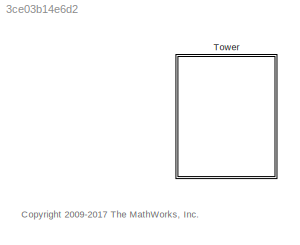
MODEL slx_3ce03b14e6d2
KIND library
CONFIG AbsTol = auto
CONFIG EnableMultiTasking = on
CONFIG FixedStep = auto
CONFIG MaxStep = auto
CONFIG MinStep = auto
CONFIG RelTol = 1e-3
CONFIG SampleTimeConstraint = Unconstrained
CONFIG Solver = ode45
CONFIG SolverName = ode45
CONFIG StartTime = 0.0
CONFIG StopTime = 10.0
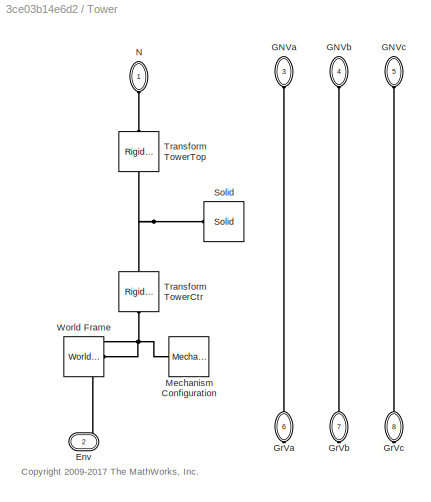
BLOCK [SubSystem] Tower
  Ports = [0, 0, 0, 0, 0, 4, 4]
  RequestExecContextInheritance = off
  Variant = off
BLOCK [PMIOPort] Tower/Env
  Port = 2
  Side = Right
BLOCK [PMIOPort] Tower/GNVa
  Port = 3
  Side = Left
  Tag = PMCPort
BLOCK [PMIOPort] Tower/GNVb
  Port = 4
  Side = Left
  Tag = PMCPort
BLOCK [PMIOPort] Tower/GNVc
  Port = 5
  Side = Left
  Tag = PMCPort
BLOCK [PMIOPort] Tower/GrVa
  Port = 6
  Side = Right
  Tag = PMCPort
BLOCK [PMIOPort] Tower/GrVb
  Port = 7
  Side = Right
  Tag = PMCPort
BLOCK [PMIOPort] Tower/GrVc
  Port = 8
  Side = Right
  Tag = PMCPort
BLOCK [Reference] Tower/Mechanism Configuration  REF=sm_lib/Utilities/Mechanism
Configuration
  Ports = [0, 0, 0, 0, 0, 0, 1]
  SourceBlock = sm_lib/Utilities/Mechanism\nConfiguration
  SourceProductBaseCode = MS
  SourceProductName = Simscape Multibody
  SourceType = Mechanism\nConfiguration
BLOCK [PMIOPort] Tower/N
  Port = 1
  Side = Left
BLOCK [Reference] Tower/Solid  REF=sm_lib/Body Elements/Solid
  Ports = [0, 0, 0, 0, 0, 0, 1]
  SourceBlock = sm_lib/Body Elements/Solid
  SourceProductBaseCode = MS
  SourceProductName = Simscape Multibody
  SourceType = Solid
BLOCK [Reference] Tower/Transform TowerCtr  REF=sm_lib/Frames and
Transforms/Rigid
Transform
  Ports = [0, 0, 0, 0, 0, 1, 1]
  SourceBlock = sm_lib/Frames and\nTransforms/Rigid\nTransform
  SourceProductBaseCode = MS
  SourceProductName = Simscape Multibody
  SourceType = Rigid\nTransform
BLOCK [Reference] Tower/Transform TowerTop  REF=sm_lib/Frames and
Transforms/Rigid
Transform
  Ports = [0, 0, 0, 0, 0, 1, 1]
  SourceBlock = sm_lib/Frames and\nTransforms/Rigid\nTransform
  SourceProductBaseCode = MS
  SourceProductName = Simscape Multibody
  SourceType = Rigid\nTransform
BLOCK [Reference] Tower/World Frame  REF=sm_lib/Frames and
Transforms/World Frame
  Ports = [0, 0, 0, 0, 0, 0, 1]
  SourceBlock = sm_lib/Frames and\nTransforms/World Frame
  SourceProductBaseCode = MS
  SourceProductName = Simscape Multibody
  SourceType = World Frame
ANNOTATION (root): <copyright redacted>
ANNOTATION Tower: <copyright redacted>
PNET net1: Tower/Env:RConn1 -- Tower/Mechanism Configuration:RConn1 -- Tower/Transform TowerCtr:LConn1 -- Tower/World Frame:RConn1
PLINE Tower/GNVa:RConn1 -- Tower/GrVa:RConn1
PLINE Tower/GNVb:RConn1 -- Tower/GrVb:RConn1
PLINE Tower/GNVc:RConn1 -- Tower/GrVc:RConn1
PLINE Tower/N:RConn1 -- Tower/Transform TowerTop:RConn1
PNET net2: Tower/Solid:RConn1 -- Tower/Transform TowerCtr:RConn1 -- Tower/Transform TowerTop:LConn1
note: PNET lines group multi-terminal physical nets as a canonical sorted terminal list (undirected conserving connections); 2-terminal nets keep the pairwise PLINE form
